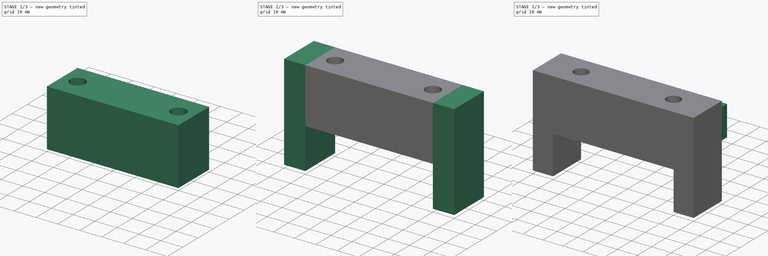
[diagram: build sequence overview — one tinted view per stage of 3, left to right]
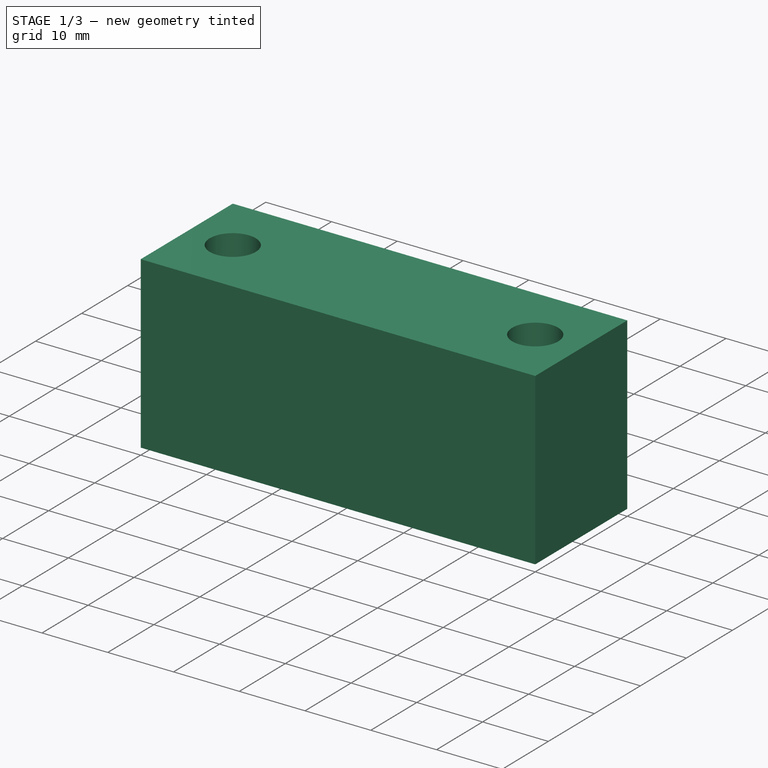
[diagram: stage 1 of 3 — iso view after this stage's code; geometry added in this stage tinted green]
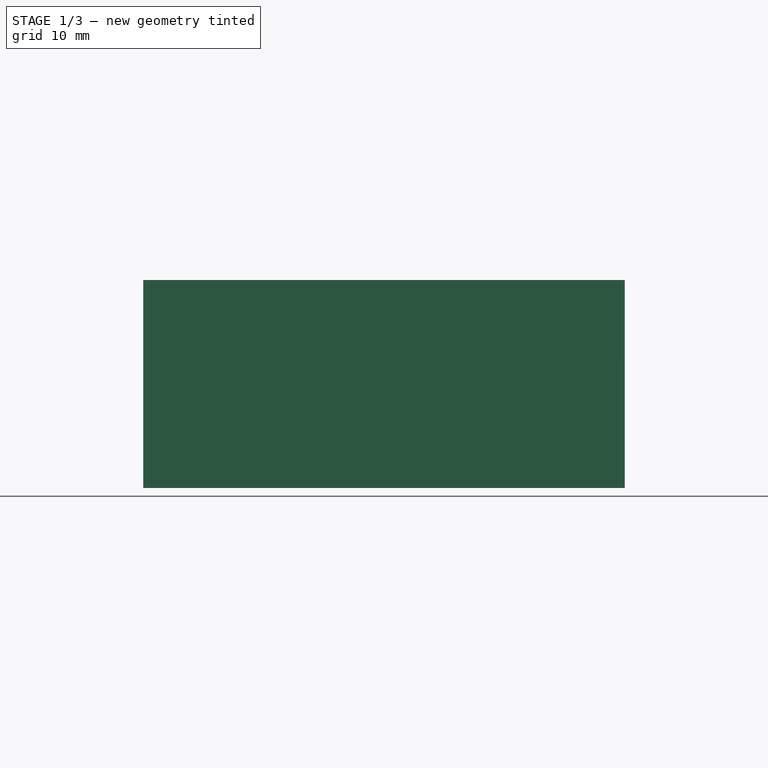
[diagram: stage 1 of 3 — front view after this stage's code; geometry added in this stage tinted green]
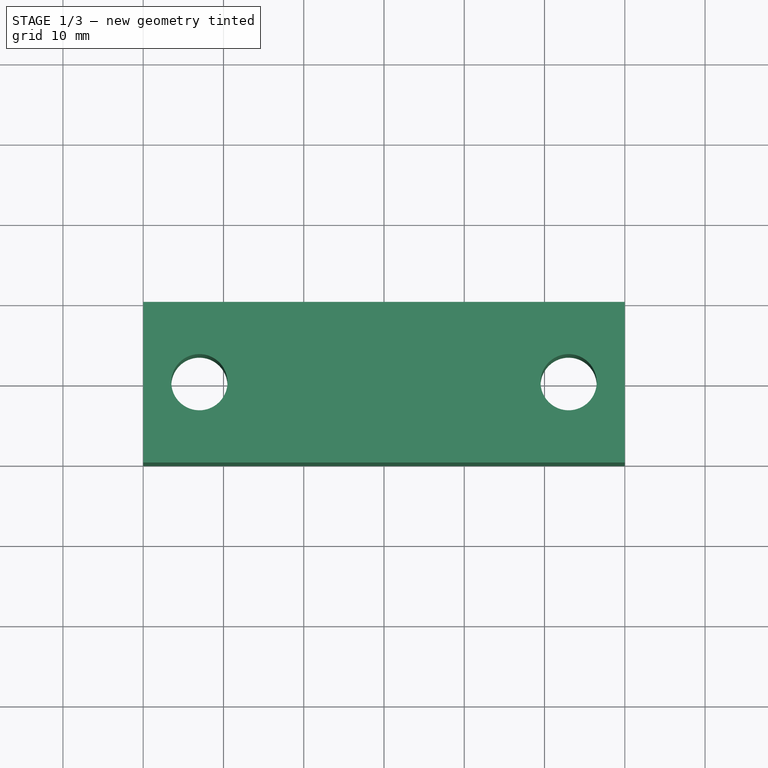
[diagram: stage 1 of 3 — top view after this stage's code; geometry added in this stage tinted green]
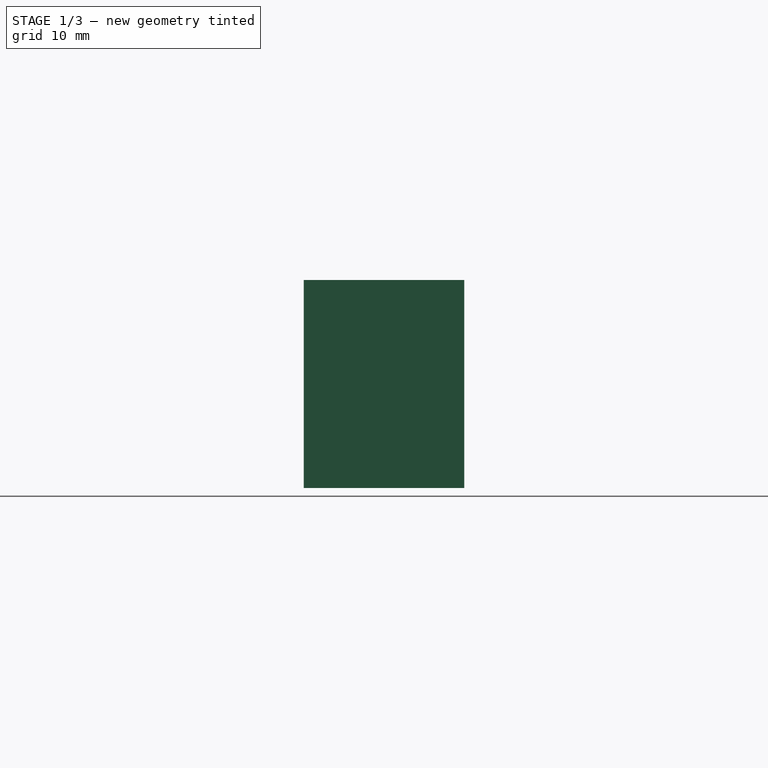
[diagram: stage 1 of 3 — right view after this stage's code; geometry added in this stage tinted green]
FCSTD DOCUMENT  (FreeCAD 0.19R)
Label: BF12_PORTAL_SUPPORT
License: All rights reserved
LicenseURL: http://en.wikipedia.org/wiki/All_rights_reserved
objects: Sketcher::SketchObject×6, PartDesign::Pad×5, PartDesign::CoordinateSystem×2, PartDesign::Pocket×1, PartDesign::Body×1
note: 21 computed .brp shape members not serialized (recipe doc carries the construction recipe); baked Part::Feature solids carry a one-line shape summary decoded from their .brp

FEATURE [Sketcher::SketchObject] Sketch
  FullyConstrained = true
  MapMode = 5
  Placement = pos=(0,0,0) rot=(1,0,0;1.5708rad)
  Support = -> [XZ_Plane]
  sketch-geometry (4):
    g0: LineSegment StartX=-30 StartY=0 StartZ=0 EndX=30 EndY=0 EndZ=0
    g1: LineSegment StartX=30 StartY=0 StartZ=0 EndX=30 EndY=25.9 EndZ=0
    g2: LineSegment StartX=30 StartY=25.9 StartZ=0 EndX=-30 EndY=25.9 EndZ=0
    g3: LineSegment StartX=-30 StartY=25.9 StartZ=0 EndX=-30 EndY=0 EndZ=0
  constraints (11):
    c: Coincident(g0,g1)
    c: Coincident(g1,g2)
    c: Coincident(g2,g3)
    c: Coincident(g3,g0)
    c: Horizontal(g2)
    c: Vertical(g1)
    c: Vertical(g3)
    c: PointOnObject(g0,g-1)
    c: DistanceX(g0,g0) = 60
    c: Symmetric(g0,g0,g-2)
    c: DistanceY(g1,g1) = 25.9
FEATURE [PartDesign::Pad] Pad
  Direction = (1,1,1)
  Length = 20
  Length2 = 100
  Placement = pos=(0,0,0) rot=(1,0,0;1.5708rad)
  Profile = -> Sketch
  Type = 0
FEATURE [Sketcher::SketchObject] Sketch001
  FullyConstrained = true
  MapMode = 5
  Placement = pos=(0,0,25.9) rot=(0,0,1;3.14159rad)
  Support = -> [Pad]
  sketch-geometry (2):
    g0: Circle CenterX=-23 CenterY=10 CenterZ=0 NormalX=0 NormalY=0 NormalZ=1 AngleXU=0 Radius=3.5
    g1: Circle CenterX=23 CenterY=10 CenterZ=0 NormalX=0 NormalY=0 NormalZ=1 AngleXU=0 Radius=3.5
  constraints (5):
    c: Equal(g1,g0)
    c: Symmetric(g0,g1,g-2)
    c: DistanceY(g-1,g0) = 10
    c: Diameter(g1) = 7
    c: DistanceX(g0,g1) = 46
FEATURE [PartDesign::Pocket] Pocket
  BaseFeature = -> Pad
  Length = 5
  Length2 = 100
  Placement = pos=(0,0,0) rot=(1,0,0;1.5708rad)
  Profile = -> Sketch001
  Type = 1
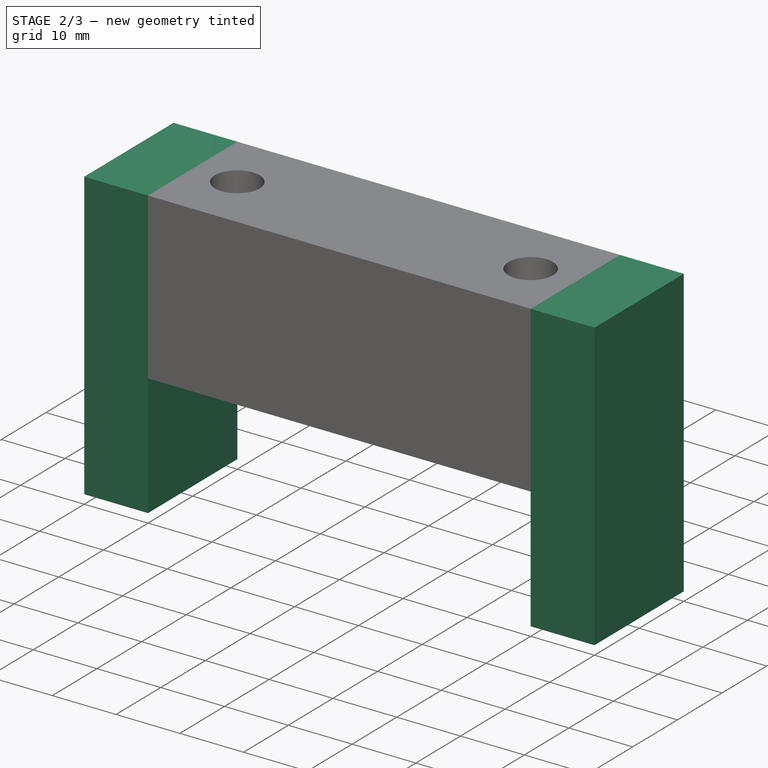
[diagram: stage 2 of 3 — iso view after this stage's code; geometry added in this stage tinted green]
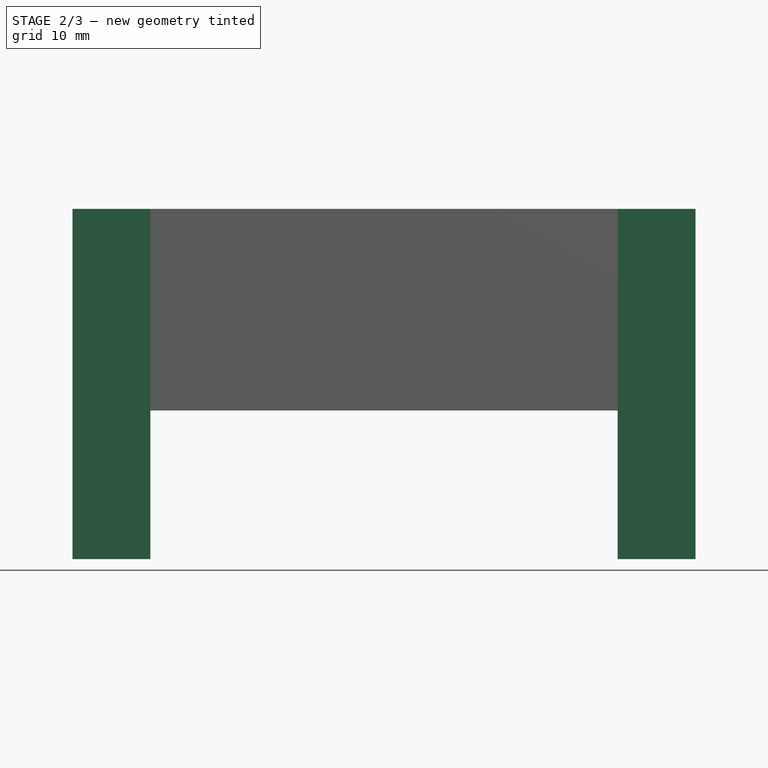
[diagram: stage 2 of 3 — front view after this stage's code; geometry added in this stage tinted green]
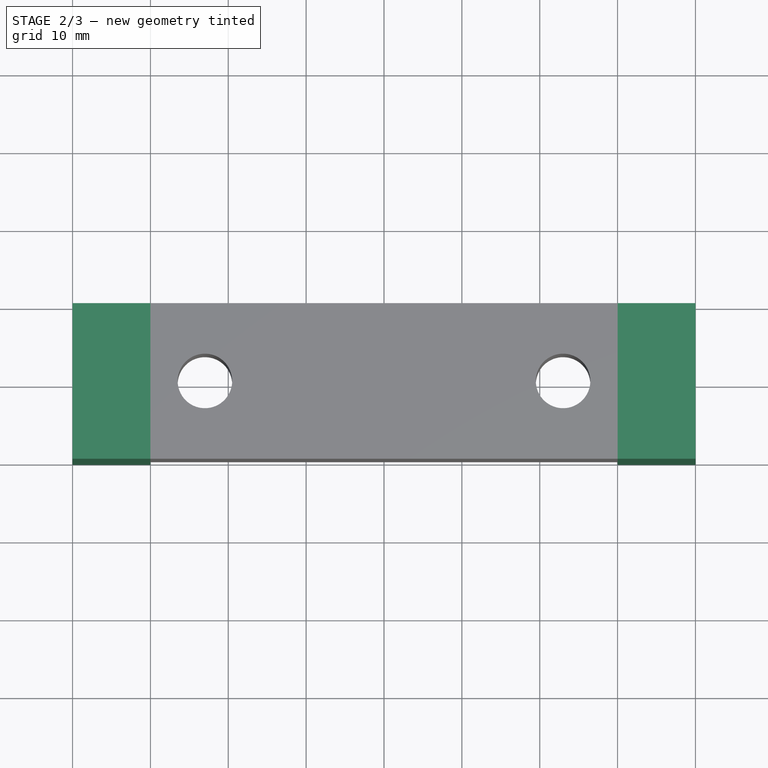
[diagram: stage 2 of 3 — top view after this stage's code; geometry added in this stage tinted green]
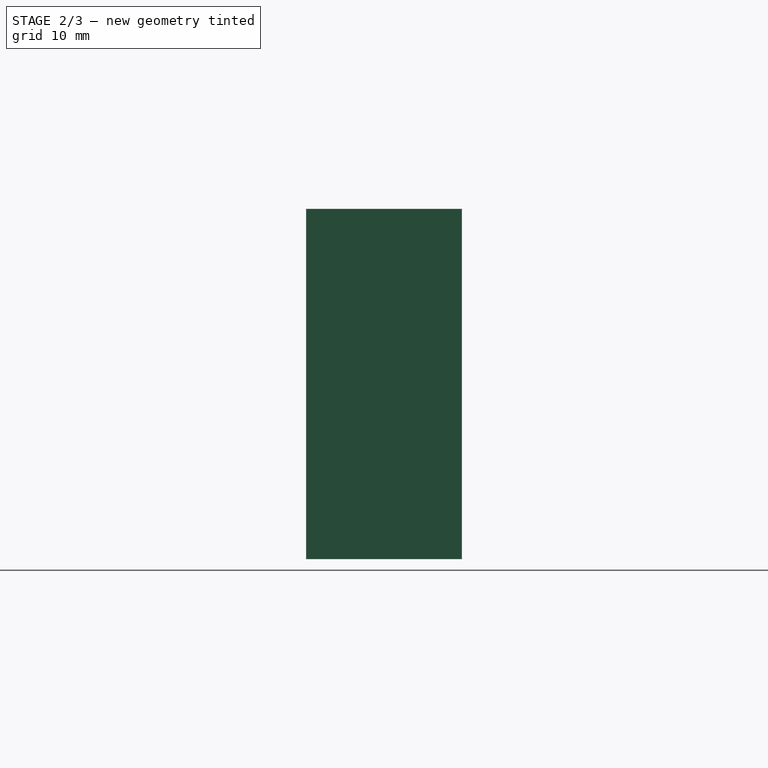
[diagram: stage 2 of 3 — right view after this stage's code; geometry added in this stage tinted green]
FEATURE [PartDesign::CoordinateSystem] LCS_TUBE_MOUNT
  AttacherType = Attacher::AttachEngine3D
  AttachmentOffset = pos=(0,10,0) rot=(0,0,1;0rad)
  MapMode = 5
  Placement = pos=(0,-10,0) rot=(1,0,0;3.14159rad)
  Support = -> [Pocket]
FEATURE [PartDesign::CoordinateSystem] LCS_BF_MOUNT
  AttacherType = Attacher::AttachEngine3D
  AttachmentOffset = pos=(0,10,0) rot=(0,0,1;0rad)
  MapMode = 5
  Placement = pos=(0,-10,25.9) rot=(0,0,1;3.14159rad)
  Support = -> [Pocket]
FEATURE [Sketcher::SketchObject] Sketch002
  ExternalGeometry = -> [Pocket]
  FullyConstrained = true
  MapMode = 5
  Placement = pos=(30,0,0) rot=(0.707107,0,0.707107;3.14159rad)
  Support = -> [Pocket]
  sketch-geometry (4):
    g0: LineSegment StartX=-19.1 StartY=20 StartZ=0 EndX=25.9 EndY=20 EndZ=0
    g1: LineSegment StartX=25.9 StartY=20 StartZ=0 EndX=25.9 EndY=7.1e-15 EndZ=0
    g2: LineSegment StartX=25.9 StartY=7.1e-15 StartZ=0 EndX=-19.1 EndY=7.1e-15 EndZ=0
    g3: LineSegment StartX=-19.1 StartY=7.1e-15 StartZ=0 EndX=-19.1 EndY=20 EndZ=0
  constraints (10):
    c: Coincident(g0,g1)
    c: Coincident(g1,g2)
    c: Coincident(g2,g3)
    c: Coincident(g3,g0)
    c: Horizontal(g0)
    c: Horizontal(g2)
    c: Vertical(g3)
    c: Coincident(g1,g-4)
    c: Coincident(g0,g-3)
    c: DistanceX(g0,g0) = 45
FEATURE [PartDesign::Pad] Pad001
  BaseFeature = -> Pocket
  Direction = (1,1,1)
  Length = 10
  Length2 = 100
  Placement = pos=(0,0,0) rot=(1,0,0;1.5708rad)
  Profile = -> Sketch002
  Type = 0
FEATURE [Sketcher::SketchObject] Sketch003
  ExternalGeometry = -> [Pad001]
  FullyConstrained = true
  MapMode = 5
  Placement = pos=(-30,0,0) rot=(0.707107,0,-0.707107;3.14159rad)
  Support = -> [Pad001]
  sketch-geometry (4):
    g0: LineSegment StartX=19.1 StartY=0 StartZ=0 EndX=-25.9 EndY=0 EndZ=0
    g1: LineSegment StartX=-25.9 StartY=0 StartZ=0 EndX=-25.9 EndY=20 EndZ=0
    g2: LineSegment StartX=-25.9 StartY=20 StartZ=0 EndX=19.1 EndY=20 EndZ=0
    g3: LineSegment StartX=19.1 StartY=20 StartZ=0 EndX=19.1 EndY=0 EndZ=0
  constraints (11):
    c: Coincident(g0,g1)
    c: Coincident(g1,g2)
    c: Coincident(g2,g3)
    c: Coincident(g3,g0)
    c: Horizontal(g0)
    c: Horizontal(g2)
    c: Vertical(g1)
    c: Vertical(g3)
    c: PointOnObject(g0,g-1)
    c: Coincident(g1,g-4)
    c: DistanceX(g2,g2) = 45
FEATURE [PartDesign::Pad] Pad002
  BaseFeature = -> Pad001
  Direction = (1,1,1)
  Length = 10
  Length2 = 100
  Placement = pos=(0,0,0) rot=(1,0,0;1.5708rad)
  Profile = -> Sketch003
  Type = 0
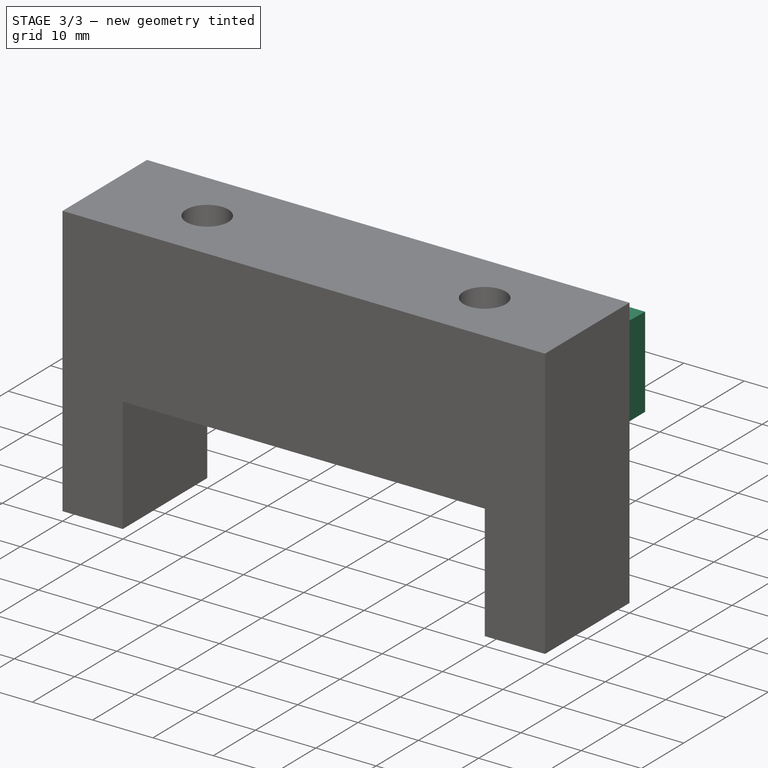
[diagram: stage 3 of 3 — iso view after this stage's code; geometry added in this stage tinted green]
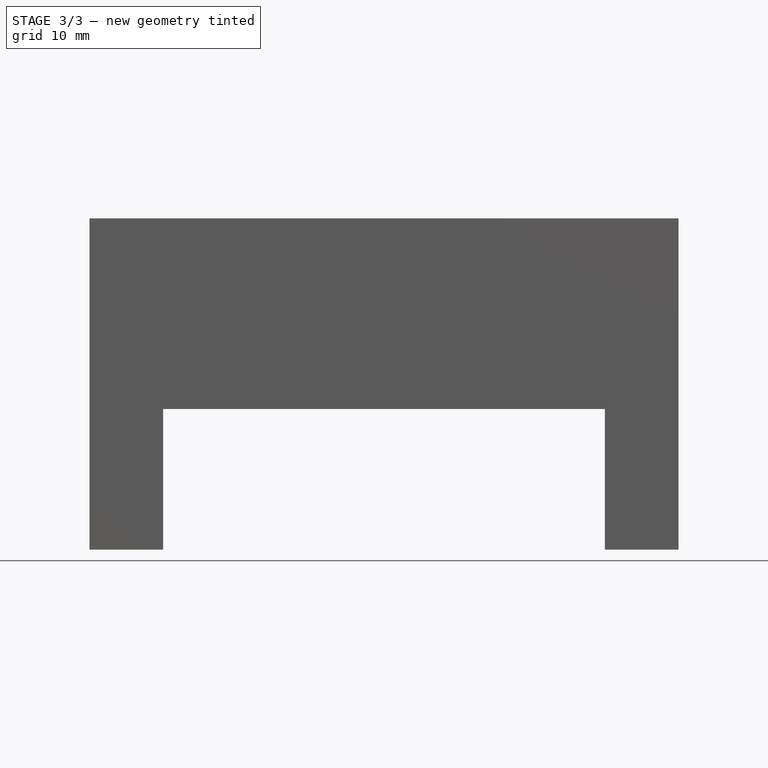
[diagram: stage 3 of 3 — front view after this stage's code; geometry added in this stage tinted green]
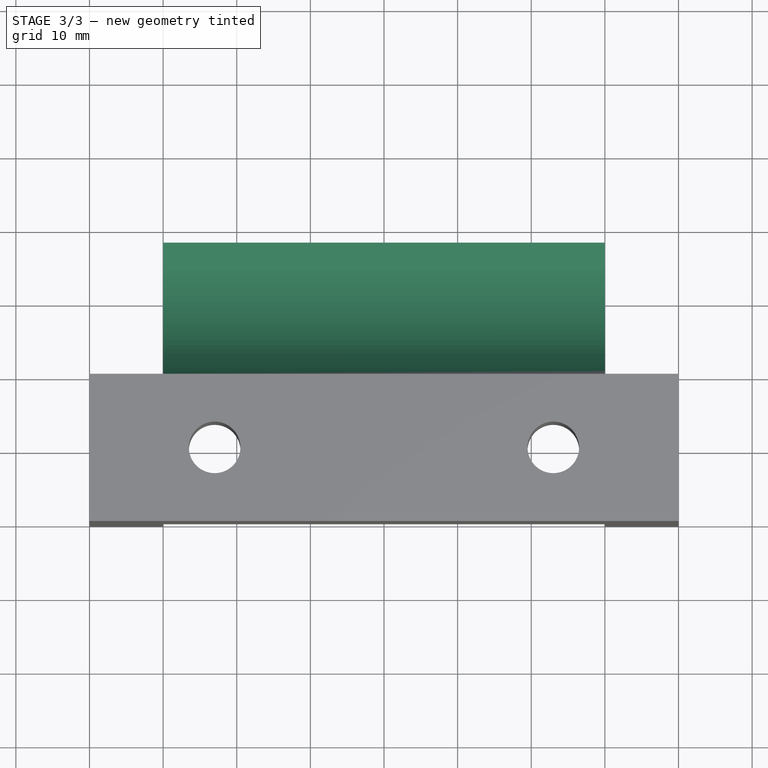
[diagram: stage 3 of 3 — top view after this stage's code; geometry added in this stage tinted green]
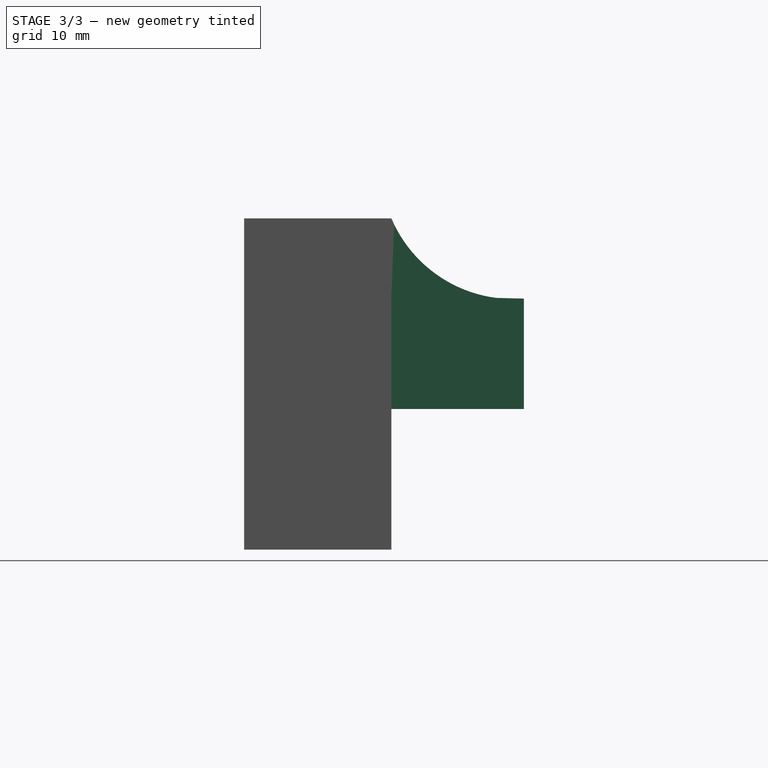
[diagram: stage 3 of 3 — right view after this stage's code; geometry added in this stage tinted green]
FEATURE [Sketcher::SketchObject] Sketch004
  FullyConstrained = true
  MapMode = 5
  Placement = pos=(0,0,0) rot=(-1,0,0;1.5708rad)
  Support = -> [Pad002]
  sketch-geometry (4):
    g0: LineSegment StartX=-30 StartY=0 StartZ=0 EndX=30 EndY=0 EndZ=0
    g1: LineSegment StartX=30 StartY=0 StartZ=0 EndX=30 EndY=-15 EndZ=0
    g2: LineSegment StartX=30 StartY=-15 StartZ=0 EndX=-30 EndY=-15 EndZ=0
    g3: LineSegment StartX=-30 StartY=-15 StartZ=0 EndX=-30 EndY=0 EndZ=0
  constraints (11):
    c: Coincident(g0,g1)
    c: Coincident(g1,g2)
    c: Coincident(g2,g3)
    c: Coincident(g3,g0)
    c: Horizontal(g2)
    c: Vertical(g1)
    c: Vertical(g3)
    c: PointOnObject(g0,g-1)
    c: DistanceY(g1,g1) = 15
    c: DistanceX(g0,g0) = 60
    c: Symmetric(g0,g0,g-2)
FEATURE [PartDesign::Pad] Pad003
  BaseFeature = -> Pad002
  Direction = (1,1,1)
  Length = 18
  Length2 = 100
  Placement = pos=(0,0,0) rot=(1,0,0;1.5708rad)
  Profile = -> Sketch004
  Type = 0
FEATURE [Sketcher::SketchObject] Sketch005
  ExternalGeometry = -> [Pad003]
  FullyConstrained = true
  MapMode = 5
  Placement = pos=(-30,0,0) rot=(0.707107,0,-0.707107;3.14159rad)
  Support = -> [Pad003]
  sketch-geometry (3):
    g0: LineSegment StartX=-25.9 StartY=-9.4502e-12 StartZ=0 EndX=-15 EndY=3.6e-15 EndZ=0
    g1: LineSegment StartX=-15 StartY=-18 StartZ=0 EndX=-15 EndY=3.6e-15 EndZ=0
    g2: ArcOfCircle CenterX=-32.9427 CenterY=-16.565 CenterZ=0 NormalX=0 NormalY=0 NormalZ=1 AngleXU=0 Radius=18 StartAngle=6.20338 EndAngle=7.45198
  constraints (7):
    c: Coincident(g0,g-4)
    c: Coincident(g0,g-3)
    c: Coincident(g1,g-3)
    c: Coincident(g1,g0)
    c: Coincident(g2,g1)
    c: Coincident(g2,g0)
    c: Radius(g2) = 18
FEATURE [PartDesign::Pad] Pad004
  BaseFeature = -> Pad003
  Direction = (1,1,1)
  Length = 60
  Length2 = 100
  Placement = pos=(0,0,0) rot=(1,0,0;1.5708rad)
  Profile = -> Sketch005
  Reversed = true
  Type = 0
FEATURE [PartDesign::Body] Body
  Group = -> [Sketch,Pad,Sketch001,Pocket,LCS_TUBE_MOUNT,LCS_BF_MOUNT,Sketch002,Pad001,Sketch003,Pad002,Sketch004,Pad003,Sketch005,Pad004]
  Origin = -> Origin
  Tip = -> Pad004
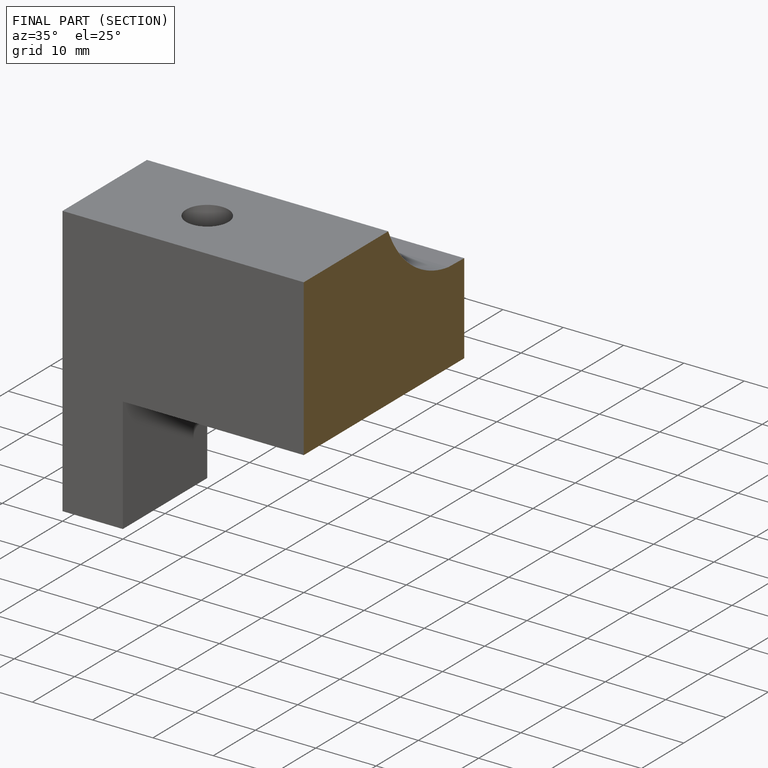
[diagram: finished part — half-section view (interior)]
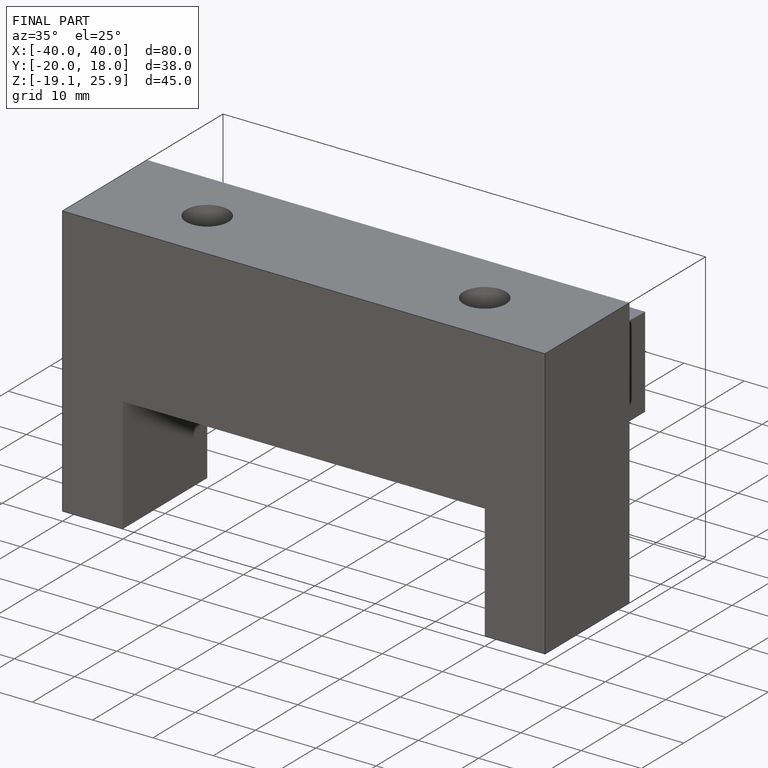
[diagram: finished part — iso view with bounding-box wireframe]
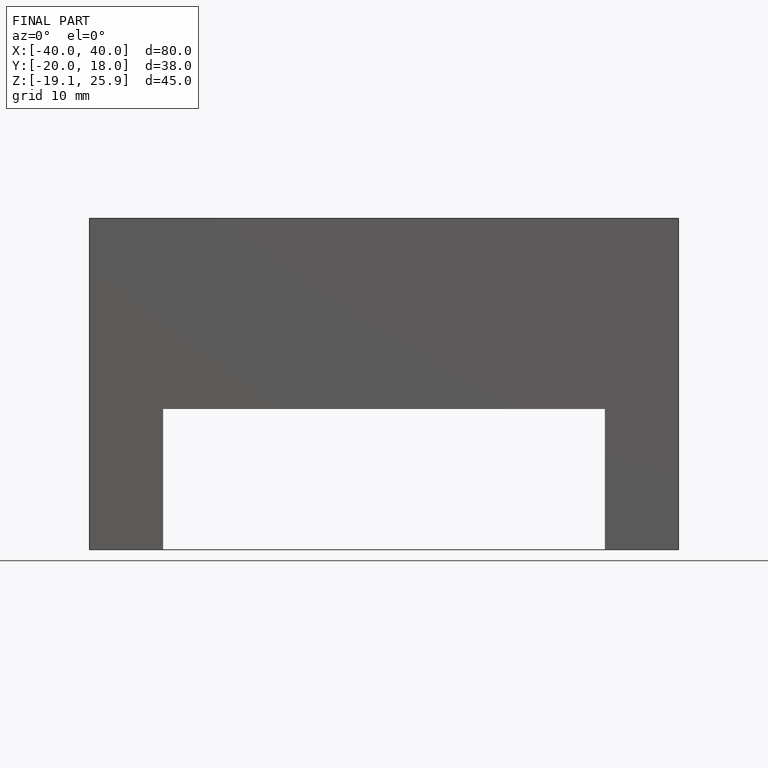
[diagram: finished part — front view with bounding-box wireframe]
